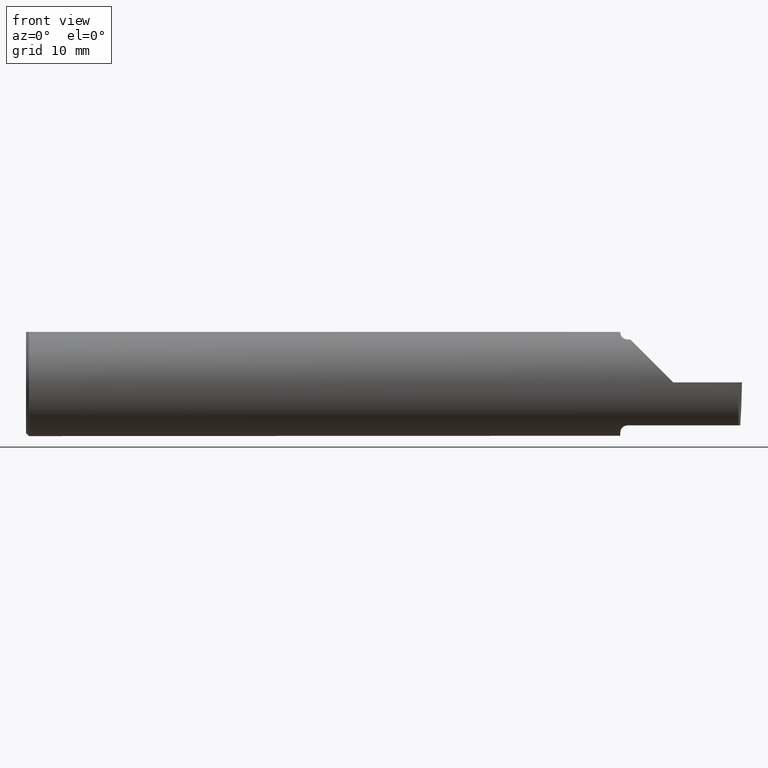
[diagram: clean part render]
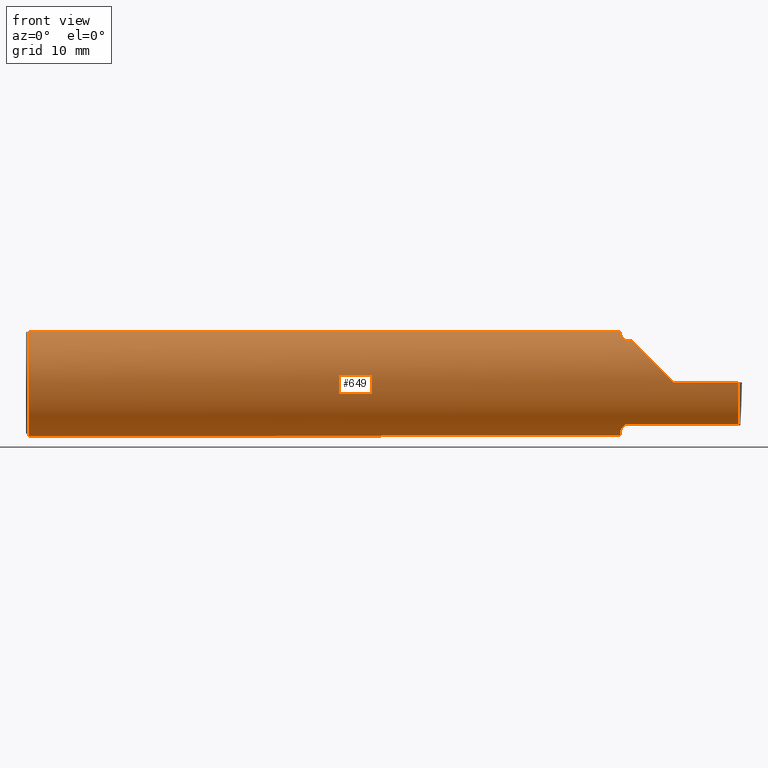
[diagram: same view with one face highlighted and labeled with its STEP entity id]
A machine part, front view. The second image highlights one B-rep face of the part: STEP entity #649.
In plain terms, the highlighted cylindrical surface (partial cylindrical patch) has radius 4.7587 mm, axis along (-1, -0, -0).
Its self-contained STEP definition (entity closure, byte-faithful):
#7 = VERTEX_POINT ( 'NONE', #107 ) ;
#13 = CARTESIAN_POINT ( 'NONE',  ( 2.079475235432781677, -0.09757364237049398481, -0.1599863467203318512 ) ) ;
#14 = CIRCLE ( 'NONE', #423, 0.1873499999999999888 ) ;
#22 = CARTESIAN_POINT ( 'NONE',  ( 2.090551048069661633, -0.1140002044565610190, -0.1486821290834930975 ) ) ;
#23 =( BOUNDED_CURVE ( )  B_SPLINE_CURVE ( 3, ( #380, #633, #688, #70 ),
 .UNSPECIFIED., .F., .F. ) 
 B_SPLINE_CURVE_WITH_KNOTS ( ( 4, 4 ),
 ( 5.852427379562164411, 6.746954780470612256 ),
 .UNSPECIFIED. ) 
 CURVE ( )  GEOMETRIC_REPRESENTATION_ITEM ( )  RATIONAL_B_SPLINE_CURVE ( ( 1.000000000000000000, 0.9344226172588802060, 0.9344226172588802060, 1.000000000000000000 ) ) 
 REPRESENTATION_ITEM ( '' )  );
#33 = VERTEX_POINT ( 'NONE', #618 ) ;
#42 = VERTEX_POINT ( 'NONE', #554 ) ;
#57 = AXIS2_PLACEMENT_3D ( 'NONE', #84, #803, #678 ) ;
#70 = CARTESIAN_POINT ( 'NONE',  ( 2.488006099050898090, -0.1873499999999999888, 0.000000000000000000 ) ) ;
#71 = EDGE_CURVE ( 'NONE', #7, #756, #792, .T. ) ;
#81 = CARTESIAN_POINT ( 'NONE',  ( 2.095724556588812515, -0.1172600179964060629, 0.1461167706989260351 ) ) ;
#84 = CARTESIAN_POINT ( 'NONE',  ( 2.075000000000000178, 0.000000000000000000, 0.000000000000000000 ) ) ;
#88 = CARTESIAN_POINT ( 'NONE',  ( 2.086319809340846820, -0.1102629523538395662, 0.1514982751257170079 ) ) ;
#94 = ORIENTED_EDGE ( 'NONE', *, *, #144, .T. ) ;
#105 = ORIENTED_EDGE ( 'NONE', *, *, #226, .F. ) ;
#106 = CARTESIAN_POINT ( 'NONE',  ( 2.075000000000000178, -0.06851976604679065053, -0.1743704796142198643 ) ) ;
#107 = CARTESIAN_POINT ( 'NONE',  ( 2.487901662807321390, -0.1172600179964006090, -0.1461167706989303927 ) ) ;
#109 =( BOUNDED_CURVE ( )  B_SPLINE_CURVE ( 3, ( #151, #782, #774, #216 ),
 .UNSPECIFIED., .F., .T. ) 
 B_SPLINE_CURVE_WITH_KNOTS ( ( 4, 4 ),
 ( 4.712388980384688786, 5.606916381293139295 ),
 .UNSPECIFIED. ) 
 CURVE ( )  GEOMETRIC_REPRESENTATION_ITEM ( )  RATIONAL_B_SPLINE_CURVE ( ( 1.000000000000000000, 0.9344226172588797619, 0.9344226172588797619, 1.000000000000000000 ) ) 
 REPRESENTATION_ITEM ( '' )  );
#110 = AXIS2_PLACEMENT_3D ( 'NONE', #234, #493, #179 ) ;
#123 = VECTOR ( 'NONE', #269, 39.37007874015748143 ) ;
#128 = CARTESIAN_POINT ( 'NONE',  ( 2.076062863587533780, -0.08334999999998818354, 0.1677879614275171183 ) ) ;
#134 = ORIENTED_EDGE ( 'NONE', *, *, #203, .T. ) ;
#139 = DIRECTION ( 'NONE',  ( -1.000000000000000000, -0.000000000000000000, -0.000000000000000000 ) ) ;
#144 = EDGE_CURVE ( 'NONE', #400, #415, #435, .T. ) ;
#149 = CARTESIAN_POINT ( 'NONE',  ( 2.084249444250374061, -0.1073163636891284328, 0.1536158790136665231 ) ) ;
#151 = CARTESIAN_POINT ( 'NONE',  ( 2.260000000000000231, -0.1873499999999999888, 2.939152317953647352E-17 ) ) ;
#155 = LINE ( 'NONE', #593, #629 ) ;
#160 = VERTEX_POINT ( 'NONE', #693 ) ;
#178 = ORIENTED_EDGE ( 'NONE', *, *, #299, .F. ) ;
#179 = DIRECTION ( 'NONE',  ( 0.000000000000000000, 0.000000000000000000, 1.000000000000000000 ) ) ;
#182 = VERTEX_POINT ( 'NONE', #579 ) ;
#188 = EDGE_CURVE ( 'NONE', #42, #550, #458, .T. ) ;
#189 = DIRECTION ( 'NONE',  ( 1.000000000000000000, 0.000000000000000000, 0.000000000000000000 ) ) ;
#197 = CARTESIAN_POINT ( 'NONE',  ( 0.009999999999999346217, 0.000000000000000000, 0.000000000000000000 ) ) ;
#200 = AXIS2_PLACEMENT_3D ( 'NONE', #511, #622, #449 ) ;
#202 = CARTESIAN_POINT ( 'NONE',  ( 2.097868998470238555, -0.1172600179964006506, -0.1461167706989303927 ) ) ;
#203 = EDGE_CURVE ( 'NONE', #182, #400, #485, .T. ) ;
#207 = CARTESIAN_POINT ( 'NONE',  ( 2.084228130464465867, -0.1072797540790366294, -0.1536407449207395914 ) ) ;
#210 = CARTESIAN_POINT ( 'NONE',  ( 2.075000000000000178, 0.000000000000000000, 0.000000000000000000 ) ) ;
#216 = CARTESIAN_POINT ( 'NONE',  ( 2.113883229301068312, -0.1172600179964003175, 0.1461167706989304760 ) ) ;
#217 = EDGE_CURVE ( 'NONE', #7, #42, #23, .T. ) ;
#219 = CARTESIAN_POINT ( 'NONE',  ( 2.076062863587535556, -0.08334999999999991027, -0.1677879614275112619 ) ) ;
#221 = ORIENTED_EDGE ( 'NONE', *, *, #521, .F. ) ;
#223 = DIRECTION ( 'NONE',  ( 1.000000000000000000, 0.000000000000000000, 0.000000000000000000 ) ) ;
#226 = EDGE_CURVE ( 'NONE', #619, #634, #770, .T. ) ;
#227 = CARTESIAN_POINT ( 'NONE',  ( 0.009999999999999346217, 0.06325108694718235836, 0.1763499999999999235 ) ) ;
#234 = CARTESIAN_POINT ( 'NONE',  ( 0.000000000000000000, 0.000000000000000000, 0.000000000000000000 ) ) ;
#247 = ORIENTED_EDGE ( 'NONE', *, *, #188, .T. ) ;
#252 = CARTESIAN_POINT ( 'NONE',  ( 2.095804171164107110, -0.1167508198888948939, -0.1465276362740038363 ) ) ;
#253 = B_SPLINE_CURVE_WITH_KNOTS ( 'NONE', 3,
 ( #323, #202, #252, #462, #22, #339, #207, #510, #13, #453, #769, #524 ),
 .UNSPECIFIED., .F., .F.,
 ( 4, 2, 2, 2, 2, 4 ),
 ( 1.967976973726874814E-07, 0.0001599896235275606951, 0.0003197824493577486652, 0.0006393681010181240633, 0.0009589537526784994072, 0.001278539404338874426 ),
 .UNSPECIFIED. ) ;
#262 = CARTESIAN_POINT ( 'NONE',  ( 2.100000000000000089, -0.1172600179964006090, 0.1461167706989303927 ) ) ;
#269 = DIRECTION ( 'NONE',  ( -1.000000000000000000, -0.000000000000000000, -0.000000000000000000 ) ) ;
#286 = ORIENTED_EDGE ( 'NONE', *, *, #71, .F. ) ;
#289 = VECTOR ( 'NONE', #139, 39.37007874015748143 ) ;
#296 = VERTEX_POINT ( 'NONE', #336 ) ;
#299 = EDGE_CURVE ( 'NONE', #349, #33, #155, .T. ) ;
#300 = LINE ( 'NONE', #489, #321 ) ;
#315 = B_SPLINE_CURVE_WITH_KNOTS ( 'NONE', 3,
 ( #335, #709, #636, #149, #88, #444, #81, #262 ),
 .UNSPECIFIED., .F., .F.,
 ( 4, 2, 2, 4 ),
 ( 0.0004561457252213468741, 0.001084815134961802192, 0.001399149839832029363, 0.001713484544702256317 ),
 .UNSPECIFIED. ) ;
#317 = CARTESIAN_POINT ( 'NONE',  ( 2.075344683557281300, -0.07855153123406183324, 0.1701716388274757685 ) ) ;
#320 = ORIENTED_EDGE ( 'NONE', *, *, #418, .F. ) ;
#321 = VECTOR ( 'NONE', #556, 39.37007874015748143 ) ;
#323 = CARTESIAN_POINT ( 'NONE',  ( 2.100000000000000089, -0.1172600179964006090, -0.1461167706989303927 ) ) ;
#331 = CARTESIAN_POINT ( 'NONE',  ( 2.075000000000000178, 0.06325108694718235836, 0.1763499999999999235 ) ) ;
#335 = CARTESIAN_POINT ( 'NONE',  ( 2.076062863587533780, -0.08334999999998818354, 0.1677879614275171183 ) ) ;
#336 = CARTESIAN_POINT ( 'NONE',  ( 2.075000000000000178, -0.06325108694718283020, 0.1763499999999999235 ) ) ;
#338 = EDGE_CURVE ( 'NONE', #550, #33, #109, .T. ) ;
#339 = CARTESIAN_POINT ( 'NONE',  ( 2.086340974786207170, -0.1102890168945985933, -0.1514792188789464422 ) ) ;
#341 = ORIENTED_EDGE ( 'NONE', *, *, #338, .T. ) ;
#349 = VERTEX_POINT ( 'NONE', #539 ) ;
#361 = EDGE_CURVE ( 'NONE', #491, #415, #710, .T. ) ;
#375 = FACE_OUTER_BOUND ( 'NONE', #393, .T. ) ;
#377 = CARTESIAN_POINT ( 'NONE',  ( 2.076062863587533780, -0.08334999999998818354, 0.1677879614275171183 ) ) ;
#380 = CARTESIAN_POINT ( 'NONE',  ( 2.487901662807321390, -0.1172600179964006090, -0.1461167706989303927 ) ) ;
#386 = AXIS2_PLACEMENT_3D ( 'NONE', #197, #189, #445 ) ;
#387 = ORIENTED_EDGE ( 'NONE', *, *, #396, .F. ) ;
#393 = EDGE_LOOP ( 'NONE', ( #286, #734, #247, #341, #178, #512, #105, #320, #789, #134, #94, #467, #387, #221, #591 ) ) ;
#396 = EDGE_CURVE ( 'NONE', #397, #491, #14, .T. ) ;
#397 = VERTEX_POINT ( 'NONE', #410 ) ;
#400 = VERTEX_POINT ( 'NONE', #599 ) ;
#401 = CARTESIAN_POINT ( 'NONE',  ( 2.075346246588685162, -0.07856197451716401270, -0.1701664510438046229 ) ) ;
#409 = CIRCLE ( 'NONE', #57, 0.1873499999999999888 ) ;
#410 = CARTESIAN_POINT ( 'NONE',  ( 2.075000000000000178, -0.06851976604679065053, -0.1743704796142198643 ) ) ;
#415 = VERTEX_POINT ( 'NONE', #227 ) ;
#418 = EDGE_CURVE ( 'NONE', #296, #619, #409, .T. ) ;
#422 = VECTOR ( 'NONE', #810, 39.37007874015748143 ) ;
#423 = AXIS2_PLACEMENT_3D ( 'NONE', #210, #786, #723 ) ;
#431 = EDGE_CURVE ( 'NONE', #756, #160, #253, .T. ) ;
#435 = CIRCLE ( 'NONE', #200, 0.1873499999999999888 ) ;
#444 = CARTESIAN_POINT ( 'NONE',  ( 2.091924463282975211, -0.1152182125075826846, 0.1477647100440766803 ) ) ;
#445 = DIRECTION ( 'NONE',  ( 0.000000000000000000, 0.000000000000000000, -1.000000000000000000 ) ) ;
#449 = DIRECTION ( 'NONE',  ( 0.000000000000000000, 0.000000000000000000, -1.000000000000000000 ) ) ;
#453 = CARTESIAN_POINT ( 'NONE',  ( 2.077380638915945710, -0.09060738690120606620, -0.1640321561807271122 ) ) ;
#458 = LINE ( 'NONE', #572, #289 ) ;
#459 = EDGE_CURVE ( 'NONE', #634, #349, #315, .T. ) ;
#462 = CARTESIAN_POINT ( 'NONE',  ( 2.092163414264744059, -0.1151183835841405462, -0.1478135984872521735 ) ) ;
#467 = ORIENTED_EDGE ( 'NONE', *, *, #361, .F. ) ;
#479 = CARTESIAN_POINT ( 'NONE',  ( 2.271949999999999914, -0.1172600179964006090, -0.1461167706989303927 ) ) ;
#485 = CIRCLE ( 'NONE', #386, 0.1873499999999999888 ) ;
#489 = CARTESIAN_POINT ( 'NONE',  ( 0.000000000000000000, -0.06325108694718235836, 0.1763499999999999235 ) ) ;
#491 = VERTEX_POINT ( 'NONE', #331 ) ;
#493 = DIRECTION ( 'NONE',  ( -1.000000000000000000, -0.000000000000000000, -0.000000000000000000 ) ) ;
#496 = CARTESIAN_POINT ( 'NONE',  ( 2.100000000000000089, -0.1172600179964006090, -0.1461167706989303927 ) ) ;
#510 = CARTESIAN_POINT ( 'NONE',  ( 2.080806801261507299, -0.1009700360460130675, -0.1578590382459147679 ) ) ;
#511 = CARTESIAN_POINT ( 'NONE',  ( 0.009999999999999346217, 0.000000000000000000, 0.000000000000000000 ) ) ;
#512 = ORIENTED_EDGE ( 'NONE', *, *, #459, .F. ) ;
#521 = EDGE_CURVE ( 'NONE', #160, #397, #608, .T. ) ;
#524 = CARTESIAN_POINT ( 'NONE',  ( 2.076062863587535556, -0.08334999999999991027, -0.1677879614275112619 ) ) ;
#538 = CARTESIAN_POINT ( 'NONE',  ( 2.260000000000000231, -0.1873499999999999888, 2.939152317953647352E-17 ) ) ;
#539 = CARTESIAN_POINT ( 'NONE',  ( 2.100000000000000089, -0.1172600179964006090, 0.1461167706989303927 ) ) ;
#550 = VERTEX_POINT ( 'NONE', #538 ) ;
#554 = CARTESIAN_POINT ( 'NONE',  ( 2.488006099050898090, -0.1873499999999999888, 0.000000000000000000 ) ) ;
#556 = DIRECTION ( 'NONE',  ( 1.000000000000000000, 0.000000000000000000, 0.000000000000000000 ) ) ;
#572 = CARTESIAN_POINT ( 'NONE',  ( 3.749399456654646757E-32, -0.1873499999999999610, 3.061616997868383634E-16 ) ) ;
#575 = CARTESIAN_POINT ( 'NONE',  ( 2.074999999999999734, -0.07360907839729495528, 0.1723706084642000480 ) ) ;
#579 = CARTESIAN_POINT ( 'NONE',  ( 0.009999999999999346217, -0.06325108694718235836, 0.1763499999999999235 ) ) ;
#591 = ORIENTED_EDGE ( 'NONE', *, *, #431, .F. ) ;
#593 = CARTESIAN_POINT ( 'NONE',  ( 2.271949999999999914, -0.1172600179964006090, 0.1461167706989303927 ) ) ;
#599 = CARTESIAN_POINT ( 'NONE',  ( 0.009999999999999346217, 0.000000000000000000, -0.1873499999999999888 ) ) ;
#608 = B_SPLINE_CURVE_WITH_KNOTS ( 'NONE', 3,
 ( #219, #401, #663, #106 ),
 .UNSPECIFIED., .F., .F.,
 ( 4, 4 ),
 ( 0.001278539404338874426, 0.001694873732696222223 ),
 .UNSPECIFIED. ) ;
#618 = CARTESIAN_POINT ( 'NONE',  ( 2.113883229301068312, -0.1172600179964003175, 0.1461167706989304760 ) ) ;
#619 = VERTEX_POINT ( 'NONE', #686 ) ;
#620 = CYLINDRICAL_SURFACE ( 'NONE', #110, 0.1873499999999999888 ) ;
#622 = DIRECTION ( 'NONE',  ( 1.000000000000000000, 0.000000000000000000, 0.000000000000000000 ) ) ;
#629 = VECTOR ( 'NONE', #223, 39.37007874015748143 ) ;
#633 = CARTESIAN_POINT ( 'NONE',  ( 2.486959146249366537, -0.1623470442677541203, -0.1099340280425339100 ) ) ;
#634 = VERTEX_POINT ( 'NONE', #128 ) ;
#636 = CARTESIAN_POINT ( 'NONE',  ( 2.079075010165368997, -0.09778159395695865119, 0.1599914159748310749 ) ) ;
#649 = ADVANCED_FACE ( 'NONE', ( #375 ), #620, .T. ) ;
#663 = CARTESIAN_POINT ( 'NONE',  ( 2.075000000000000178, -0.07359296612170564134, -0.1723769398647691520 ) ) ;
#678 = DIRECTION ( 'NONE',  ( 0.000000000000000000, 0.000000000000000000, -1.000000000000000000 ) ) ;
#686 = CARTESIAN_POINT ( 'NONE',  ( 2.075000000000000178, -0.06851976604679065053, 0.1743704796142198643 ) ) ;
#688 = CARTESIAN_POINT ( 'NONE',  ( 2.486996401427643555, -0.1873500000000000443, -0.05781030015605125721 ) ) ;
#693 = CARTESIAN_POINT ( 'NONE',  ( 2.076062863587535556, -0.08334999999999991027, -0.1677879614275112619 ) ) ;
#706 = CARTESIAN_POINT ( 'NONE',  ( 2.075000000000000178, -0.06851976604679065053, 0.1743704796142198643 ) ) ;
#709 = CARTESIAN_POINT ( 'NONE',  ( 2.077158970028690543, -0.09067355718685703170, 0.1641499263364886996 ) ) ;
#710 = LINE ( 'NONE', #719, #123 ) ;
#719 = CARTESIAN_POINT ( 'NONE',  ( 0.000000000000000000, 0.06325108694718235836, 0.1763499999999999235 ) ) ;
#723 = DIRECTION ( 'NONE',  ( 0.000000000000000000, 0.000000000000000000, -1.000000000000000000 ) ) ;
#734 = ORIENTED_EDGE ( 'NONE', *, *, #217, .T. ) ;
#745 = EDGE_CURVE ( 'NONE', #182, #296, #300, .T. ) ;
#756 = VERTEX_POINT ( 'NONE', #496 ) ;
#769 = CARTESIAN_POINT ( 'NONE',  ( 2.076612951569643872, -0.08702537370779858672, -0.1659621904011592264 ) ) ;
#770 = B_SPLINE_CURVE_WITH_KNOTS ( 'NONE', 3,
 ( #706, #575, #317, #377 ),
 .UNSPECIFIED., .F., .F.,
 ( 4, 4 ),
 ( 4.423516731080748054E-05, 0.0004561457252213468741 ),
 .UNSPECIFIED. ) ;
#774 = CARTESIAN_POINT ( 'NONE',  ( 2.150065971957464850, -0.1623470442677540371, 0.1099340280425340488 ) ) ;
#782 = CARTESIAN_POINT ( 'NONE',  ( 2.202189699843948301, -0.1873500000000000443, 0.05781030015605120170 ) ) ;
#786 = DIRECTION ( 'NONE',  ( 1.000000000000000000, 0.000000000000000000, 0.000000000000000000 ) ) ;
#789 = ORIENTED_EDGE ( 'NONE', *, *, #745, .F. ) ;
#792 = LINE ( 'NONE', #479, #422 ) ;
#803 = DIRECTION ( 'NONE',  ( 1.000000000000000000, 0.000000000000000000, 0.000000000000000000 ) ) ;
#810 = DIRECTION ( 'NONE',  ( -1.000000000000000000, -0.000000000000000000, -0.000000000000000000 ) ) ;